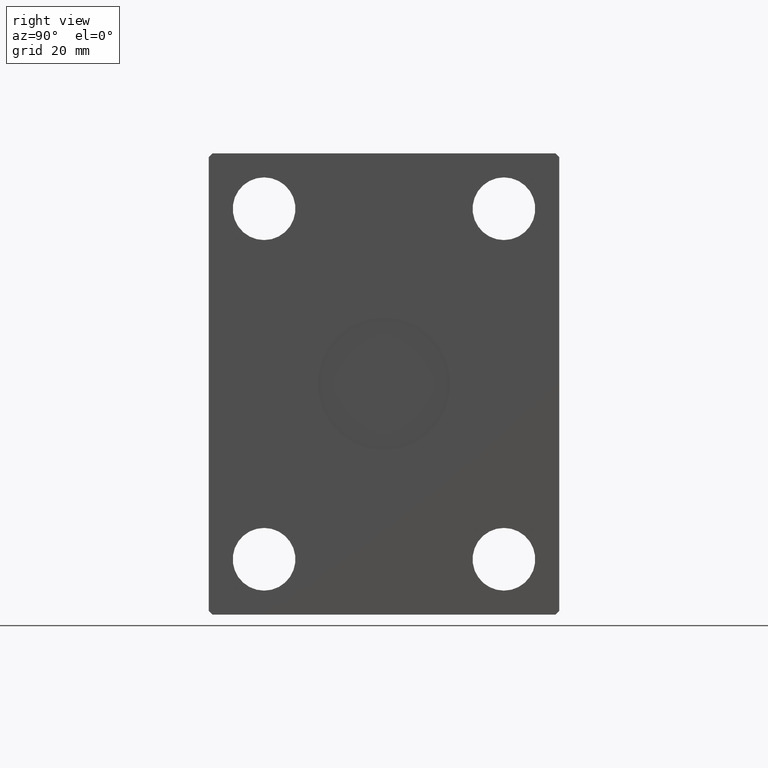
[diagram: clean part render]
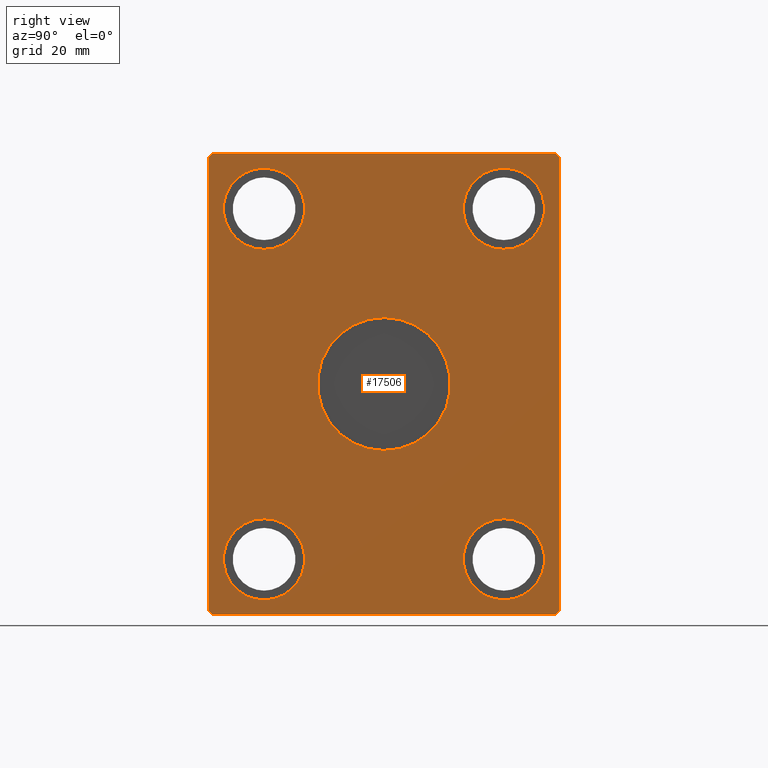
[diagram: same view with one face highlighted and labeled with its STEP entity id]
A machine part, right view. The second image highlights one B-rep face of the part: STEP entity #17506.
In plain terms, the highlighted planar face has unit normal (1, 0, 0).
Its self-contained STEP definition (entity closure, byte-faithful):
#159 = EDGE_CURVE ( 'NONE', #17382, #25444, #24828, .T. ) ;
#355 = ORIENTED_EDGE ( 'NONE', *, *, #38741, .T. ) ;
#356 = AXIS2_PLACEMENT_3D ( 'NONE', #18792, #25247, #39205 ) ;
#455 = ORIENTED_EDGE ( 'NONE', *, *, #35736, .T. ) ;
#579 = EDGE_CURVE ( 'NONE', #13658, #5299, #8884, .T. ) ;
#1204 = CIRCLE ( 'NONE', #25206, 10.99999999999999645 ) ;
#1821 = CARTESIAN_POINT ( 'NONE',  ( 121.0000000000000000, -47.50000000000001421, 61.49999999999997868 ) ) ;
#1822 = CARTESIAN_POINT ( 'NONE',  ( 121.0000000000000000, 32.50000000000000000, 47.50000000000000000 ) ) ;
#1906 = DIRECTION ( 'NONE',  ( 1.000000000000000000, 0.000000000000000000, 0.000000000000000000 ) ) ;
#1951 = DIRECTION ( 'NONE',  ( 0.000000000000000000, 0.000000000000000000, -1.000000000000000000 ) ) ;
#2512 = ORIENTED_EDGE ( 'NONE', *, *, #159, .T. ) ;
#2513 = CIRCLE ( 'NONE', #14203, 10.99999999999999645 ) ;
#2615 = VERTEX_POINT ( 'NONE', #42090 ) ;
#3880 = EDGE_LOOP ( 'NONE', ( #32229, #20360 ) ) ;
#4559 = EDGE_CURVE ( 'NONE', #2615, #30406, #20133, .T. ) ;
#4567 = ORIENTED_EDGE ( 'NONE', *, *, #36142, .T. ) ;
#4579 = CARTESIAN_POINT ( 'NONE',  ( 121.0000000000000000, -46.50000000000000000, -62.50000000000001421 ) ) ;
#5013 = CARTESIAN_POINT ( 'NONE',  ( 121.0000000000000000, -47.49999999999999289, -61.50000000000001421 ) ) ;
#5018 = CARTESIAN_POINT ( 'NONE',  ( 121.0000000000000000, -32.50000000000000000, -47.50000000000000000 ) ) ;
#5271 = AXIS2_PLACEMENT_3D ( 'NONE', #36006, #25695, #28723 ) ;
#5299 = VERTEX_POINT ( 'NONE', #14519 ) ;
#5745 = PLANE ( 'NONE',  #19717 ) ;
#6501 = LINE ( 'NONE', #19613, #32436 ) ;
#6789 = CARTESIAN_POINT ( 'NONE',  ( 121.0000000000000000, 32.50000000000000000, 47.50000000000000000 ) ) ;
#6823 = VERTEX_POINT ( 'NONE', #30092 ) ;
#7191 = ORIENTED_EDGE ( 'NONE', *, *, #14630, .T. ) ;
#7844 = EDGE_LOOP ( 'NONE', ( #22849, #20220 ) ) ;
#7944 = EDGE_LOOP ( 'NONE', ( #38393, #7191 ) ) ;
#8031 = DIRECTION ( 'NONE',  ( -1.000000000000000000, -0.000000000000000000, -0.000000000000000000 ) ) ;
#8071 = CARTESIAN_POINT ( 'NONE',  ( 121.0000000000000000, 32.50000000000000000, 36.50000000000000711 ) ) ;
#8146 = EDGE_CURVE ( 'NONE', #19683, #23482, #34005, .T. ) ;
#8442 = DIRECTION ( 'NONE',  ( 0.000000000000000000, 0.7071067811865451302, -0.7071067811865500152 ) ) ;
#8445 = EDGE_CURVE ( 'NONE', #18373, #6823, #20224, .T. ) ;
#8464 = DIRECTION ( 'NONE',  ( 0.000000000000000000, 0.000000000000000000, -1.000000000000000000 ) ) ;
#8590 = CARTESIAN_POINT ( 'NONE',  ( 121.0000000000000000, 47.50000000000001421, -61.50000000000001421 ) ) ;
#8646 = VECTOR ( 'NONE', #24504, 1000.000000000000000 ) ;
#8884 = LINE ( 'NONE', #1821, #37217 ) ;
#8998 = ORIENTED_EDGE ( 'NONE', *, *, #41678, .T. ) ;
#9169 = FACE_BOUND ( 'NONE', #7844, .T. ) ;
#9361 = CIRCLE ( 'NONE', #5271, 10.99999999999999645 ) ;
#9928 = DIRECTION ( 'NONE',  ( 0.000000000000000000, -0.7071067811865474617, -0.7071067811865474617 ) ) ;
#10359 = CARTESIAN_POINT ( 'NONE',  ( 121.0000000000000000, 46.50000000000000000, -62.50000000000000000 ) ) ;
#10377 = CARTESIAN_POINT ( 'NONE',  ( 121.0000000000000000, -46.50000000000001421, 62.49999999999997868 ) ) ;
#10404 = AXIS2_PLACEMENT_3D ( 'NONE', #12774, #28893, #15365 ) ;
#10424 = DIRECTION ( 'NONE',  ( 1.000000000000000000, -0.000000000000000000, -0.000000000000000000 ) ) ;
#11031 = DIRECTION ( 'NONE',  ( 0.000000000000000000, 0.000000000000000000, -1.000000000000000000 ) ) ;
#11246 = CARTESIAN_POINT ( 'NONE',  ( 121.0000000000000000, -32.50000000000000000, 47.50000000000000000 ) ) ;
#11534 = CARTESIAN_POINT ( 'NONE',  ( 121.0000000000000000, 47.50000000000001421, -61.50000000000001421 ) ) ;
#11549 = DIRECTION ( 'NONE',  ( 0.000000000000000000, -0.7071067811865474617, 0.7071067811865474617 ) ) ;
#11563 = FACE_BOUND ( 'NONE', #3880, .T. ) ;
#11882 = DIRECTION ( 'NONE',  ( 1.000000000000000000, -0.000000000000000000, -0.000000000000000000 ) ) ;
#11885 = DIRECTION ( 'NONE',  ( 0.000000000000000000, 0.000000000000000000, 1.000000000000000000 ) ) ;
#11978 = FACE_OUTER_BOUND ( 'NONE', #40070, .T. ) ;
#12279 = CARTESIAN_POINT ( 'NONE',  ( 121.0000000000000000, 46.50000000000000000, 62.49999999999998579 ) ) ;
#12774 = CARTESIAN_POINT ( 'NONE',  ( 121.0000000000000000, 32.50000000000000000, -47.50000000000000000 ) ) ;
#12847 = VECTOR ( 'NONE', #8442, 1000.000000000000114 ) ;
#13658 = VERTEX_POINT ( 'NONE', #25055 ) ;
#13668 = VERTEX_POINT ( 'NONE', #11534 ) ;
#14203 = AXIS2_PLACEMENT_3D ( 'NONE', #29053, #35081, #18547 ) ;
#14393 = ORIENTED_EDGE ( 'NONE', *, *, #8146, .T. ) ;
#14519 = CARTESIAN_POINT ( 'NONE',  ( 121.0000000000000000, -47.49999999999999289, -61.50000000000001421 ) ) ;
#14630 = EDGE_CURVE ( 'NONE', #30105, #17921, #9361, .T. ) ;
#15355 = EDGE_CURVE ( 'NONE', #41839, #18955, #24445, .T. ) ;
#15365 = DIRECTION ( 'NONE',  ( 0.000000000000000000, 0.000000000000000000, 1.000000000000000000 ) ) ;
#15415 = FACE_BOUND ( 'NONE', #32112, .T. ) ;
#15461 = EDGE_CURVE ( 'NONE', #22629, #32146, #31366, .T. ) ;
#15570 = AXIS2_PLACEMENT_3D ( 'NONE', #6789, #10424, #19899 ) ;
#15696 = CARTESIAN_POINT ( 'NONE',  ( 121.0000000000000000, 32.50000000000000000, 58.50000000000000000 ) ) ;
#16062 = CARTESIAN_POINT ( 'NONE',  ( 121.0000000000000000, 47.50000000000000000, 61.49999999999998579 ) ) ;
#16142 = ORIENTED_EDGE ( 'NONE', *, *, #22477, .T. ) ;
#17382 = VERTEX_POINT ( 'NONE', #26619 ) ;
#17466 = ORIENTED_EDGE ( 'NONE', *, *, #579, .T. ) ;
#17506 = ADVANCED_FACE ( 'NONE', ( #15415, #34971, #18440, #11978, #9169, #11563 ), #5745, .T. ) ;
#17636 = AXIS2_PLACEMENT_3D ( 'NONE', #11246, #8031, #11885 ) ;
#17688 = DIRECTION ( 'NONE',  ( 0.000000000000000000, 1.000000000000000000, 1.492235248152092278E-16 ) ) ;
#17698 = LINE ( 'NONE', #5013, #12847 ) ;
#17921 = VERTEX_POINT ( 'NONE', #39586 ) ;
#18049 = AXIS2_PLACEMENT_3D ( 'NONE', #21483, #27720, #1951 ) ;
#18223 = DIRECTION ( 'NONE',  ( 0.000000000000000000, 0.000000000000000000, -1.000000000000000000 ) ) ;
#18373 = VERTEX_POINT ( 'NONE', #41338 ) ;
#18440 = FACE_BOUND ( 'NONE', #28655, .T. ) ;
#18547 = DIRECTION ( 'NONE',  ( 0.000000000000000000, 0.000000000000000000, 1.000000000000000000 ) ) ;
#18792 = CARTESIAN_POINT ( 'NONE',  ( 121.0000000000000000, 0.000000000000000000, 0.000000000000000000 ) ) ;
#18955 = VERTEX_POINT ( 'NONE', #34556 ) ;
#19613 = CARTESIAN_POINT ( 'NONE',  ( 121.0000000000000000, -46.50000000000001421, 62.49999999999997868 ) ) ;
#19683 = VERTEX_POINT ( 'NONE', #21727 ) ;
#19717 = AXIS2_PLACEMENT_3D ( 'NONE', #31742, #1906, #18223 ) ;
#19899 = DIRECTION ( 'NONE',  ( 0.000000000000000000, 0.000000000000000000, -1.000000000000000000 ) ) ;
#20133 = CIRCLE ( 'NONE', #18049, 10.99999999999999645 ) ;
#20220 = ORIENTED_EDGE ( 'NONE', *, *, #4559, .F. ) ;
#20224 = CIRCLE ( 'NONE', #22947, 18.00000000000000000 ) ;
#20360 = ORIENTED_EDGE ( 'NONE', *, *, #15461, .F. ) ;
#20993 = ORIENTED_EDGE ( 'NONE', *, *, #8445, .F. ) ;
#21241 = CARTESIAN_POINT ( 'NONE',  ( 121.0000000000000000, 46.50000000000000000, -62.50000000000000000 ) ) ;
#21483 = CARTESIAN_POINT ( 'NONE',  ( 121.0000000000000000, -32.50000000000000000, -47.50000000000000000 ) ) ;
#21727 = CARTESIAN_POINT ( 'NONE',  ( 121.0000000000000000, -46.50000000000000000, -62.50000000000001421 ) ) ;
#22153 = DIRECTION ( 'NONE',  ( 0.000000000000000000, -1.000000000000000000, -7.461176240760460157E-17 ) ) ;
#22477 = EDGE_CURVE ( 'NONE', #28810, #13658, #6501, .T. ) ;
#22602 = CARTESIAN_POINT ( 'NONE',  ( 121.0000000000000000, 32.50000000000000000, -58.50000000000000000 ) ) ;
#22629 = VERTEX_POINT ( 'NONE', #15696 ) ;
#22849 = ORIENTED_EDGE ( 'NONE', *, *, #40997, .F. ) ;
#22947 = AXIS2_PLACEMENT_3D ( 'NONE', #26662, #27080, #39986 ) ;
#23482 = VERTEX_POINT ( 'NONE', #10359 ) ;
#23667 = CIRCLE ( 'NONE', #356, 18.00000000000000000 ) ;
#24285 = AXIS2_PLACEMENT_3D ( 'NONE', #1822, #37909, #8464 ) ;
#24445 = LINE ( 'NONE', #41633, #27217 ) ;
#24504 = DIRECTION ( 'NONE',  ( 0.000000000000000000, -1.128275431529630729E-16, 1.000000000000000000 ) ) ;
#24828 = CIRCLE ( 'NONE', #10404, 10.99999999999999645 ) ;
#24997 = DIRECTION ( 'NONE',  ( 0.000000000000000000, 1.692413147294445970E-16, -1.000000000000000000 ) ) ;
#25055 = CARTESIAN_POINT ( 'NONE',  ( 121.0000000000000000, -47.50000000000001421, 61.49999999999997868 ) ) ;
#25126 = LINE ( 'NONE', #8590, #8646 ) ;
#25206 = AXIS2_PLACEMENT_3D ( 'NONE', #5018, #11882, #11031 ) ;
#25247 = DIRECTION ( 'NONE',  ( 1.000000000000000000, 0.000000000000000000, 0.000000000000000000 ) ) ;
#25444 = VERTEX_POINT ( 'NONE', #22602 ) ;
#25606 = CARTESIAN_POINT ( 'NONE',  ( 121.0000000000000000, -32.50000000000000000, 58.50000000000000000 ) ) ;
#25695 = DIRECTION ( 'NONE',  ( -1.000000000000000000, -0.000000000000000000, -0.000000000000000000 ) ) ;
#26458 = VECTOR ( 'NONE', #22153, 1000.000000000000000 ) ;
#26619 = CARTESIAN_POINT ( 'NONE',  ( 121.0000000000000000, 32.50000000000000000, -36.50000000000000711 ) ) ;
#26662 = CARTESIAN_POINT ( 'NONE',  ( 121.0000000000000000, 0.000000000000000000, 0.000000000000000000 ) ) ;
#27080 = DIRECTION ( 'NONE',  ( 1.000000000000000000, 0.000000000000000000, 0.000000000000000000 ) ) ;
#27154 = EDGE_CURVE ( 'NONE', #32146, #22629, #32530, .T. ) ;
#27217 = VECTOR ( 'NONE', #11549, 1000.000000000000114 ) ;
#27470 = DIRECTION ( 'NONE',  ( 0.000000000000000000, 0.7071067811865574537, 0.7071067811865376918 ) ) ;
#27720 = DIRECTION ( 'NONE',  ( 1.000000000000000000, -0.000000000000000000, -0.000000000000000000 ) ) ;
#27911 = CIRCLE ( 'NONE', #17636, 10.99999999999999645 ) ;
#28655 = EDGE_LOOP ( 'NONE', ( #355, #2512 ) ) ;
#28723 = DIRECTION ( 'NONE',  ( 0.000000000000000000, 0.000000000000000000, 1.000000000000000000 ) ) ;
#28810 = VERTEX_POINT ( 'NONE', #10377 ) ;
#28893 = DIRECTION ( 'NONE',  ( -1.000000000000000000, -0.000000000000000000, -0.000000000000000000 ) ) ;
#29053 = CARTESIAN_POINT ( 'NONE',  ( 121.0000000000000000, 32.50000000000000000, -47.50000000000000000 ) ) ;
#29654 = EDGE_CURVE ( 'NONE', #6823, #18373, #23667, .T. ) ;
#30092 = CARTESIAN_POINT ( 'NONE',  ( 121.0000000000000000, 2.204364238465235428E-15, 18.00000000000000000 ) ) ;
#30105 = VERTEX_POINT ( 'NONE', #25606 ) ;
#30406 = VERTEX_POINT ( 'NONE', #33487 ) ;
#30534 = ORIENTED_EDGE ( 'NONE', *, *, #40224, .T. ) ;
#31366 = CIRCLE ( 'NONE', #15570, 10.99999999999999645 ) ;
#31742 = CARTESIAN_POINT ( 'NONE',  ( 121.0000000000000000, 0.000000000000000000, 0.000000000000000000 ) ) ;
#31825 = ORIENTED_EDGE ( 'NONE', *, *, #29654, .F. ) ;
#32112 = EDGE_LOOP ( 'NONE', ( #20993, #31825 ) ) ;
#32146 = VERTEX_POINT ( 'NONE', #8071 ) ;
#32229 = ORIENTED_EDGE ( 'NONE', *, *, #27154, .F. ) ;
#32436 = VECTOR ( 'NONE', #9928, 1000.000000000000114 ) ;
#32530 = CIRCLE ( 'NONE', #24285, 10.99999999999999645 ) ;
#33487 = CARTESIAN_POINT ( 'NONE',  ( 121.0000000000000000, -32.50000000000000000, -58.50000000000000000 ) ) ;
#34005 = LINE ( 'NONE', #4579, #42123 ) ;
#34556 = CARTESIAN_POINT ( 'NONE',  ( 121.0000000000000000, 46.50000000000000000, 62.49999999999998579 ) ) ;
#34971 = FACE_BOUND ( 'NONE', #7944, .T. ) ;
#35058 = LINE ( 'NONE', #12279, #26458 ) ;
#35081 = DIRECTION ( 'NONE',  ( -1.000000000000000000, -0.000000000000000000, -0.000000000000000000 ) ) ;
#35736 = EDGE_CURVE ( 'NONE', #18955, #28810, #35058, .T. ) ;
#36006 = CARTESIAN_POINT ( 'NONE',  ( 121.0000000000000000, -32.50000000000000000, 47.50000000000000000 ) ) ;
#36142 = EDGE_CURVE ( 'NONE', #13668, #41839, #25126, .T. ) ;
#37217 = VECTOR ( 'NONE', #24997, 1000.000000000000000 ) ;
#37768 = ORIENTED_EDGE ( 'NONE', *, *, #15355, .T. ) ;
#37909 = DIRECTION ( 'NONE',  ( 1.000000000000000000, -0.000000000000000000, -0.000000000000000000 ) ) ;
#38393 = ORIENTED_EDGE ( 'NONE', *, *, #38685, .T. ) ;
#38685 = EDGE_CURVE ( 'NONE', #17921, #30105, #27911, .T. ) ;
#38741 = EDGE_CURVE ( 'NONE', #25444, #17382, #2513, .T. ) ;
#39205 = DIRECTION ( 'NONE',  ( 0.000000000000000000, 0.000000000000000000, -1.000000000000000000 ) ) ;
#39586 = CARTESIAN_POINT ( 'NONE',  ( 121.0000000000000000, -32.50000000000000000, 36.50000000000000711 ) ) ;
#39667 = VECTOR ( 'NONE', #27470, 999.9999999999998863 ) ;
#39986 = DIRECTION ( 'NONE',  ( 0.000000000000000000, 0.000000000000000000, -1.000000000000000000 ) ) ;
#40070 = EDGE_LOOP ( 'NONE', ( #37768, #455, #16142, #17466, #30534, #14393, #8998, #4567 ) ) ;
#40224 = EDGE_CURVE ( 'NONE', #5299, #19683, #17698, .T. ) ;
#40587 = LINE ( 'NONE', #21241, #39667 ) ;
#40997 = EDGE_CURVE ( 'NONE', #30406, #2615, #1204, .T. ) ;
#41338 = CARTESIAN_POINT ( 'NONE',  ( 121.0000000000000000, 0.000000000000000000, -18.00000000000000000 ) ) ;
#41633 = CARTESIAN_POINT ( 'NONE',  ( 121.0000000000000000, 47.50000000000000000, 61.49999999999998579 ) ) ;
#41678 = EDGE_CURVE ( 'NONE', #23482, #13668, #40587, .T. ) ;
#41839 = VERTEX_POINT ( 'NONE', #16062 ) ;
#42090 = CARTESIAN_POINT ( 'NONE',  ( 121.0000000000000000, -32.50000000000000000, -36.50000000000000711 ) ) ;
#42123 = VECTOR ( 'NONE', #17688, 1000.000000000000000 ) ;